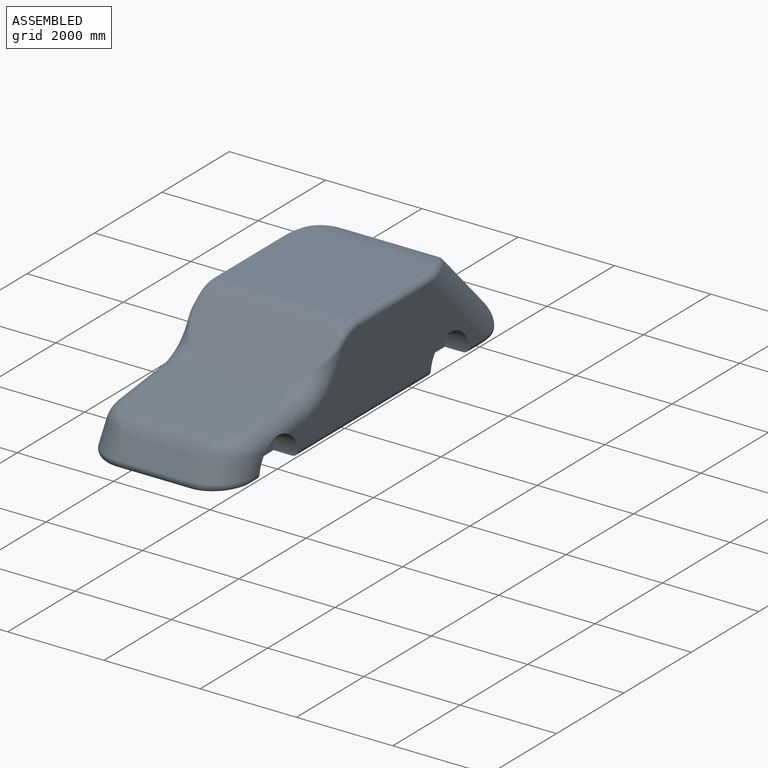
[diagram: assembled view]
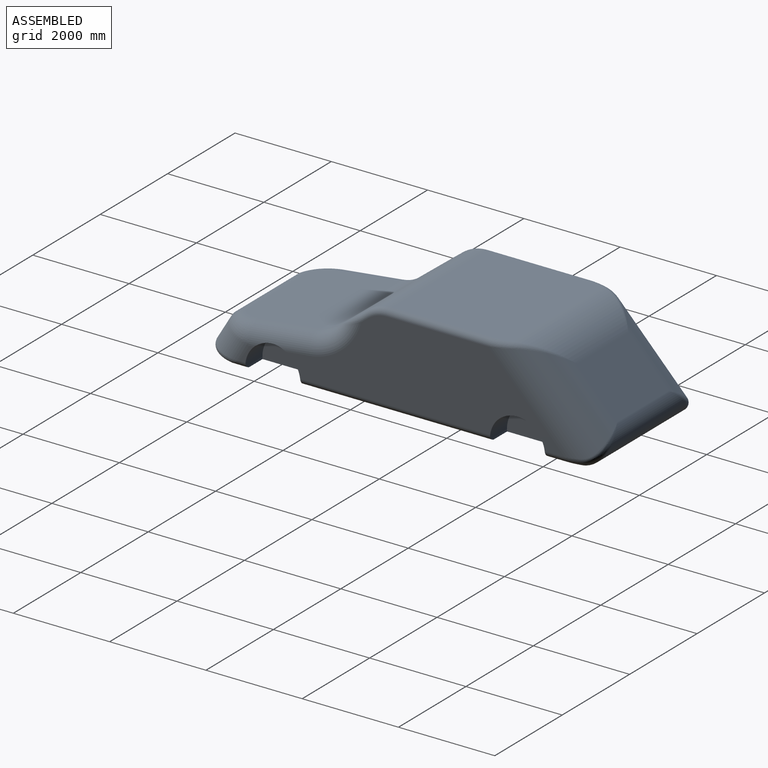
[diagram: assembled view, second angle]
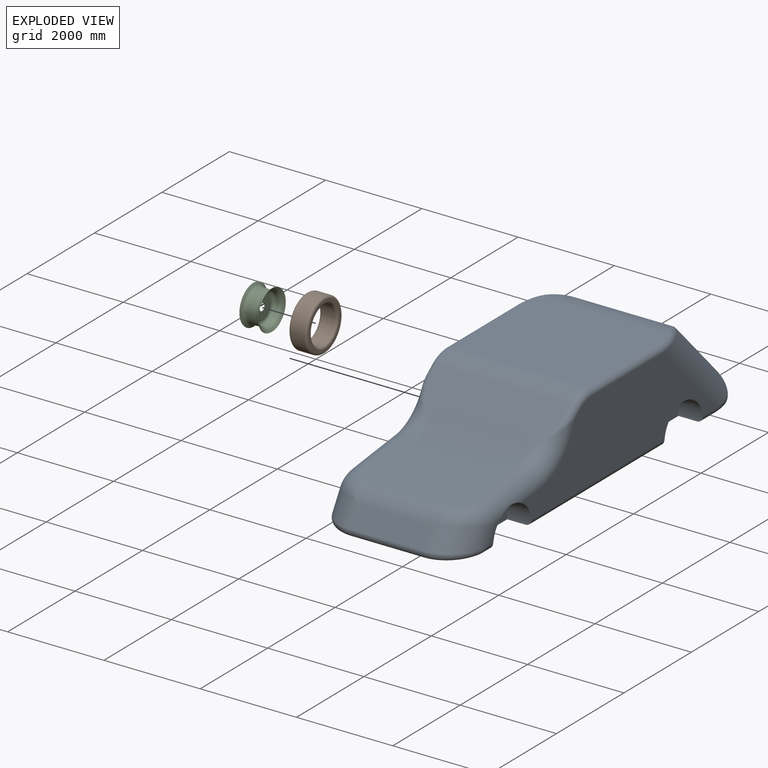
[diagram: exploded view]
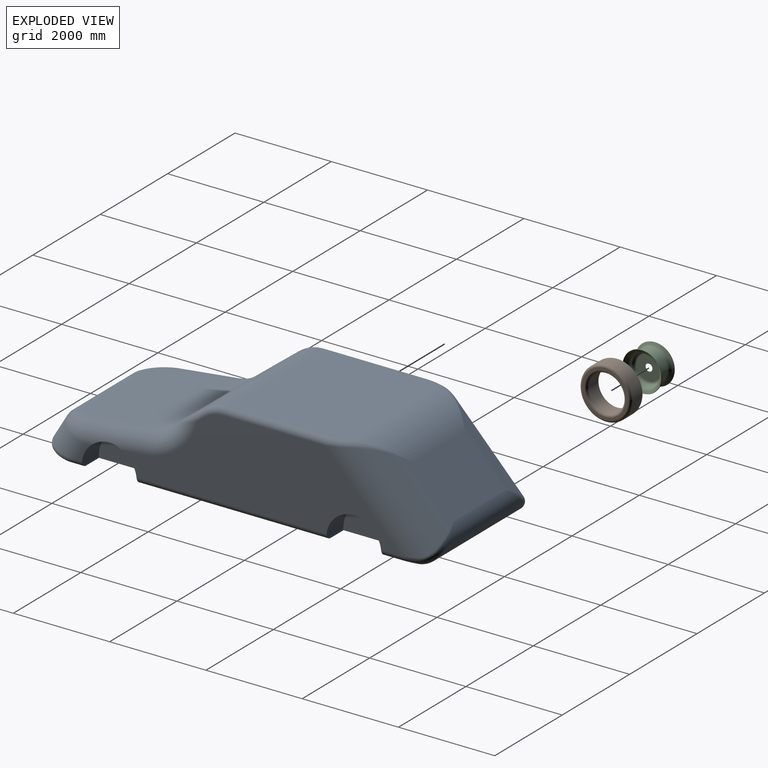
[diagram: exploded view, second angle]
ASSEMBLY  parts=3 mates=2
PART A: 60 faces, bbox 3172.2x8498x2644 mm
  f0: plane 346.22x298.45mm, normal (-1,0,0), area 26901.8mm2, adj f2,f4,f24,f56
  f1: plane 5781.1x1651.01mm, normal (-1,0,0), area 6133151.8mm2, adj f2,f3,f23,f29,f30,f31,f34,f49
  f2: cylinder r=381mm len=1293.34mm, axis (0,0.99,0.12), area 702105.6mm2, adj f0,f1,f19,f33,f34,f56
  f3: cylinder r=127mm len=3946.53mm, axis (0,-1,0), area 786845.2mm2, adj f1,f11,f56,f58
  f4: cylinder r=127mm len=346.21mm, axis (0,-1,0), area 46218.6mm2, adj f0,f11,f48,f56
  f5: plane 5781.1x1651.01mm, normal (1,0,0), area 6133151.7mm2, adj f6,f7,f21,f25,f26,f27,f36,f37
  f6: cylinder r=127mm len=414.05mm, axis (0,1,0), area 82372.4mm2, adj f5,f11,f45,f54
  f7: cylinder r=127mm len=3946.53mm, axis (0,1,0), area 786845.2mm2, adj f5,f11,f52,f54
  f8: cylinder r=508mm len=1899.18mm, axis (1,0,0), area 818409.3mm2, adj f9,f19,f22,f24,f33,f35
  f9: plane 1524x394.13mm, normal (0,-0.86,0.51), area 700476.5mm2, adj f8,f10,f22,f24
  f10: cylinder r=101.6mm len=1524mm, axis (1,0,0), area 326897.3mm2, adj f9,f11,f42,f47
  f11: plane 7816.65x2794mm, normal (0,0,-1), area 19912636.7mm2, adj f3,f4,f6,f7,f10,f12,f42,f44
  f12: cylinder r=381mm len=2725.93mm, axis (1,0,0), area 1891083.1mm2, adj f11,f13,f46,f51
  f13: plane 1524x869.66mm, normal (0,0.72,0.69), area 1837242mm2, adj f12,f14,f21,f23
  f14: cylinder r=1270mm len=2660.34mm, axis (1,0,0), area 2141064.4mm2, adj f13,f15,f40,f41
  f15: plane 2794x2499.26mm, normal (0,0,1), area 6965791.9mm2, adj f14,f16,f27,f28,f31,f32
  f16: cylinder r=762mm len=2794mm, axis (1,0,0), area 1407379.4mm2, adj f15,f17,f26,f30
  f17: plane 2894.15x841.08mm, normal (0,-0.61,0.79), area 2476989.7mm2, adj f16,f18,f25,f29,f38,f39
  f18: cylinder r=889mm len=2286mm, axis (1,0,0), area 1105412.9mm2, adj f17,f19,f34,f37
  f19: plane 2286x1664.92mm, normal (0,-0.12,0.99), area 3785271.1mm2, adj f2,f8,f18,f33,f35,f36
  f20: plane 346.22x298.45mm, normal (1,0,0), area 26901.8mm2, adj f22,f36,f44,f52
  f21: cylinder r=762mm len=2320.75mm, axis (0,-0.69,0.72), area 2237820.1mm2, adj f5,f13,f28,f40,f45,f46
  f22: cylinder r=762mm len=1091.94mm, axis (0,-0.51,-0.86), area 574800.6mm2, adj f8,f9,f20,f35,f42,f43
  f23: cylinder r=762mm len=2320.75mm, axis (0,0.69,-0.72), area 2237820.1mm2, adj f1,f13,f32,f41,f50,f51
  f24: cylinder r=762mm len=1091.94mm, axis (0,0.51,0.86), area 574800.6mm2, adj f0,f8,f9,f33,f47,f48
  f25: cylinder r=127mm len=217.41mm, axis (0,-0.79,-0.61), area 35240.7mm2, adj f5,f17,f26,f39
  f26: torus R=635mm, axis (1,0,0), area 94400.8mm2, adj f5,f16,f25,f27
  f27: cylinder r=127mm len=2106.17mm, axis (0,-1,0), area 420163mm2, adj f5,f15,f26,f28
  f28: bspline ~525.5x220.64mm, area 76604.3mm2, adj f15,f21,f27,f40
  f29: cylinder r=127mm len=217.41mm, axis (0,0.79,0.61), area 35240.7mm2, adj f1,f17,f30,f38
  f30: torus R=635mm, axis (1,0,0), area 94400.8mm2, adj f1,f16,f29,f31
  f31: cylinder r=127mm len=2106.17mm, axis (0,1,0), area 420163mm2, adj f1,f15,f30,f32
  f32: bspline ~433.99x193.83mm, area 76604.3mm2, adj f15,f23,f31,f41
  f33: bspline ~800.5x722.81mm, area 378042.8mm2, adj f2,f8,f19,f24
  f34: torus R=1270mm, axis (1,0,0), area 545071.7mm2, adj f1,f2,f18,f38
  f35: bspline ~874.35x763.11mm, area 378039.8mm2, adj f8,f19,f22,f36
  f36: cylinder r=381mm len=1293.34mm, axis (0,-0.99,-0.12), area 702105.6mm2, adj f5,f19,f20,f35,f37,f52
  f37: torus R=1270mm, axis (1,0,0), area 545071.7mm2, adj f5,f18,f36,f39
  f38: bspline ~706.23x485.76mm, area 58445.8mm2, adj f17,f29,f34
  f39: bspline ~706.23x485.76mm, area 57462mm2, adj f17,f25,f37
  f40: bspline ~963.22x699.24mm, area 64452.6mm2, adj f14,f21,f28
  f41: bspline ~963.22x699.24mm, area 64382.2mm2, adj f14,f23,f32
  f42: bspline ~766.5x754.33mm, area 200733.1mm2, adj f10,f11,f22,f43
  f43: bspline ~266.97x137.4mm, area 14777.4mm2, adj f22,f42,f44
  f44: cylinder r=127mm len=346.21mm, axis (0,1,0), area 46218.6mm2, adj f11,f20,f43,f52
  f45: bspline ~490.26x186.93mm, area 65710.8mm2, adj f6,f11,f21,f46
  f46: bspline ~759.99x646.19mm, area 100963.6mm2, adj f12,f21,f45
  f47: bspline ~830.08x766.5mm, area 200733.1mm2, adj f10,f11,f24,f48
  f48: bspline ~266.97x137.4mm, area 14695mm2, adj f4,f24,f47
  f49: cylinder r=127mm len=414.05mm, axis (0,-1,0), area 82372.4mm2, adj f1,f11,f50,f58
  f50: bspline ~490.26x186.93mm, area 65710.8mm2, adj f11,f23,f49,f51
  f51: bspline ~759.99x646.19mm, area 99413.8mm2, adj f12,f23,f50
  f52: cylinder r=571.5mm len=1143mm, axis (1,0,0), area 953377.2mm2, adj f5,f7,f11,f20,f36,f44,f53
  f53: plane 1143x624.84mm, normal (1,0,0), area 573924.2mm2, adj f11,f52
  f54: cylinder r=571.5mm len=1143mm, axis (1,0,0), area 950184.4mm2, adj f5,f6,f7,f11,f55
  f55: plane 1143x624.84mm, normal (1,0,0), area 573924.2mm2, adj f11,f54
  f56: cylinder r=571.5mm len=1143mm, axis (1,0,0), area 953379.2mm2, adj f0,f1,f2,f3,f4,f11,f57
  f57: plane 1143x624.84mm, normal (-1,0,0), area 573924.2mm2, adj f11,f56
  f58: cylinder r=571.5mm len=1143mm, axis (1,0,0), area 950184.4mm2, adj f1,f3,f11,f49,f59
  f59: plane 1143x624.84mm, normal (-1,0,0), area 573924.2mm2, adj f11,f58
PART B: 8 faces, bbox 381x1154.7x1154.7 mm
  f0: torus R=431.8mm, axis (-1,0,0), area 200279.5mm2, adj f1,f7
  f1: cylinder r=381mm len=762mm, axis (-1,0,0), area 668853.9mm2, adj f0,f2
  f2: torus R=431.8mm, axis (-1,0,0), area 200279.5mm2, adj f1,f3
  f3: plane 965.2x965.2mm, normal (1,0,0), area 145931.8mm2, adj f2,f4
  f4: torus R=482.6mm, axis (-1,0,0), area 258178.7mm2, adj f3,f5
  f5: cylinder r=533.4mm len=1066.8mm, axis (-1,0,0), area 936395.4mm2, adj f4,f6
  f6: torus R=482.6mm, axis (-1,0,0), area 258178.7mm2, adj f5,f7
  f7: plane 965.2x965.2mm, normal (-1,0,0), area 145931.8mm2, adj f0,f6
PART C: 19 faces, bbox 395.3x879.8x879.8 mm
  f0: cylinder r=76.2mm len=152.4mm, axis (-1,0,0), area 6080.5mm2, adj f2,f4
  f1: torus R=254mm, axis (1,0,0), area 49408.8mm2, adj f2,f18
  f2: plane 508x508mm, normal (-1,0,0), area 184441.5mm2, adj f0,f1
  f3: torus R=254mm, axis (1,0,0), area 184522.2mm2, adj f4,f6
  f4: plane 508x508mm, normal (1,0,0), area 184441.5mm2, adj f0,f3
  f5: cylinder r=330.2mm len=660.4mm, axis (1,0,0), area 397123.6mm2, adj f15,f16
  f6: cylinder r=317.5mm len=635mm, axis (1,0,0), area 76006.1mm2, adj f3,f10
  f7: cone r=411.48mm half-angle=30deg, axis (1,0,0), area 32581.3mm2, adj f13,f17
  f8: cone r=411.48mm half-angle=30deg, axis (-1,0,0), area 32581.3mm2, adj f9,f14
  f9: cone r=361.95mm half-angle=60deg, axis (1,0,0), area 120155.2mm2, adj f8,f10
  f10: torus R=406.4mm, axis (1,0,0), area 194714.5mm2, adj f6,f9
  f11: cylinder r=317.5mm len=635mm, axis (1,0,0), area 117951.3mm2, adj f12,f18
  f12: torus R=406.4mm, axis (1,0,0), area 194714.5mm2, adj f11,f13
  f13: cone r=405.13mm half-angle=60deg, axis (-1,0,0), area 120155.2mm2, adj f7,f12
  f14: cone r=368.3mm half-angle=60deg, axis (1,0,0), area 122144.5mm2, adj f8,f15
  f15: torus R=406.4mm, axis (1,0,0), area 172164mm2, adj f5,f14
  f16: torus R=406.4mm, axis (1,0,0), area 172164mm2, adj f5,f17
  f17: cone r=411.48mm half-angle=60deg, axis (-1,0,0), area 122144.5mm2, adj f7,f16
  f18: torus R=292.1mm, axis (1,0,0), area 94903.3mm2, adj f1,f11
PLACE A t=(2778.12,-969.09,1369.78)mm
PLACE B t=(-24.19,12.95,487.05)mm
PLACE C t=(-24.19,12.95,487.05)mm fixed
MATE fastened B.f0 <-> A.f54  axis (-1,0,0) through (-15.88,12.95,29.78)mm
MATE fastened B.f0 <-> C.f0  axis (-1,0,0) through (-15.88,12.95,29.78)mm
